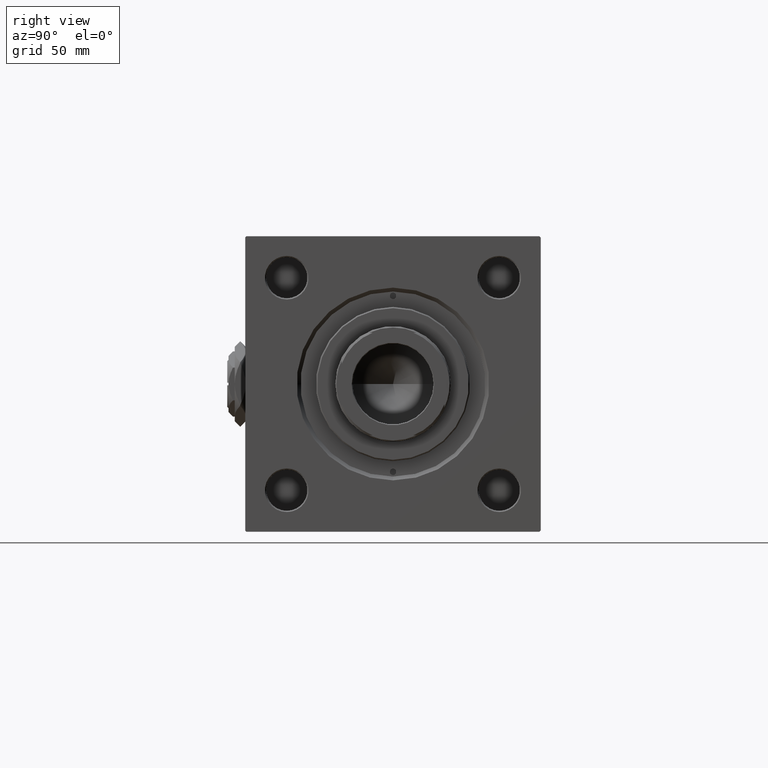
[diagram: clean part render]
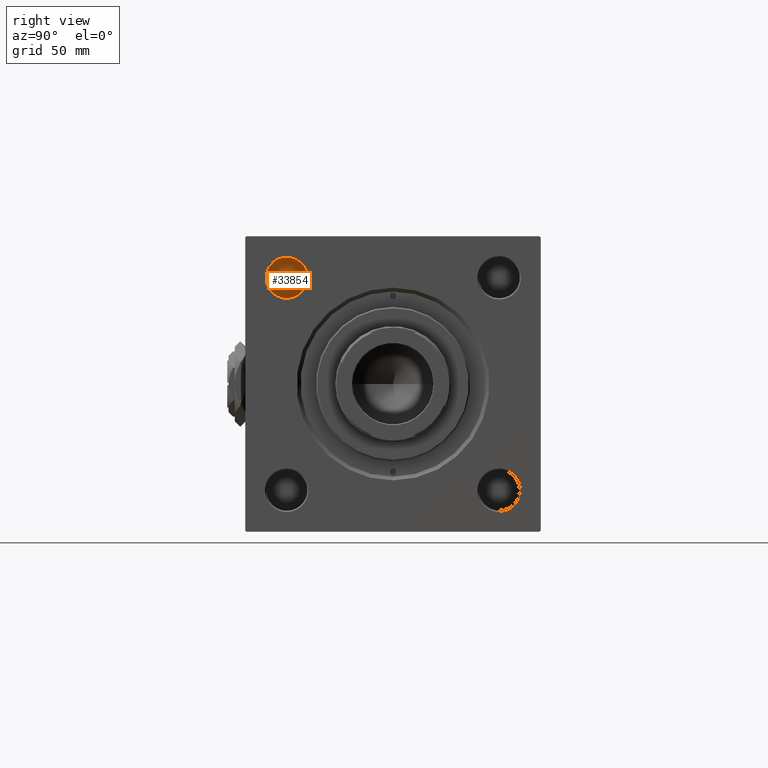
[diagram: same view with one face highlighted and labeled with its STEP entity id]
A machine part, right view. The second image highlights one B-rep face of the part: STEP entity #33854.
In plain terms, the highlighted planar face has unit normal (1, 0, 0).
Its self-contained STEP definition (entity closure, byte-faithful):
#1792 = AXIS2_PLACEMENT_3D ( 'NONE', #10836, #39410, #35396 ) ;
#6646 = VERTEX_POINT ( 'NONE', #49613 ) ;
#10836 = CARTESIAN_POINT ( 'NONE',  ( 149.0000000000000000, -41.34999999999999432, 41.35000000000000142 ) ) ;
#11440 = CARTESIAN_POINT ( 'NONE',  ( 149.0000000000000000, -41.34999999999999432, 41.35000000000000142 ) ) ;
#17901 = AXIS2_PLACEMENT_3D ( 'NONE', #31311, #40126, #52169 ) ;
#19996 = DIRECTION ( 'NONE',  ( 1.000000000000000000, 0.000000000000000000, 0.000000000000000000 ) ) ;
#21320 = ORIENTED_EDGE ( 'NONE', *, *, #45393, .T. ) ;
#23105 = CIRCLE ( 'NONE', #1792, 8.000000000000000000 ) ;
#23484 = FACE_OUTER_BOUND ( 'NONE', #37330, .T. ) ;
#23737 = ORIENTED_EDGE ( 'NONE', *, *, #42437, .T. ) ;
#23748 = PLANE ( 'NONE',  #39843 ) ;
#31311 = CARTESIAN_POINT ( 'NONE',  ( 149.0000000000000000, -41.34999999999999432, 41.35000000000000142 ) ) ;
#33854 = ADVANCED_FACE ( 'NONE', ( #23484 ), #23748, .T. ) ;
#35396 = DIRECTION ( 'NONE',  ( 0.000000000000000000, 0.000000000000000000, -1.000000000000000000 ) ) ;
#36530 = DIRECTION ( 'NONE',  ( 0.000000000000000000, 0.000000000000000000, -1.000000000000000000 ) ) ;
#37330 = EDGE_LOOP ( 'NONE', ( #21320, #23737 ) ) ;
#37395 = VERTEX_POINT ( 'NONE', #46890 ) ;
#39410 = DIRECTION ( 'NONE',  ( 1.000000000000000000, 0.000000000000000000, 0.000000000000000000 ) ) ;
#39843 = AXIS2_PLACEMENT_3D ( 'NONE', #11440, #19996, #36530 ) ;
#40126 = DIRECTION ( 'NONE',  ( 1.000000000000000000, 0.000000000000000000, 0.000000000000000000 ) ) ;
#42437 = EDGE_CURVE ( 'NONE', #6646, #37395, #51136, .T. ) ;
#45393 = EDGE_CURVE ( 'NONE', #37395, #6646, #23105, .T. ) ;
#46890 = CARTESIAN_POINT ( 'NONE',  ( 149.0000000000000000, -41.34999999999999432, 33.35000000000000142 ) ) ;
#49613 = CARTESIAN_POINT ( 'NONE',  ( 149.0000000000000000, -41.34999999999999432, 49.35000000000000853 ) ) ;
#51136 = CIRCLE ( 'NONE', #17901, 8.000000000000000000 ) ;
#52169 = DIRECTION ( 'NONE',  ( 0.000000000000000000, 0.000000000000000000, -1.000000000000000000 ) ) ;